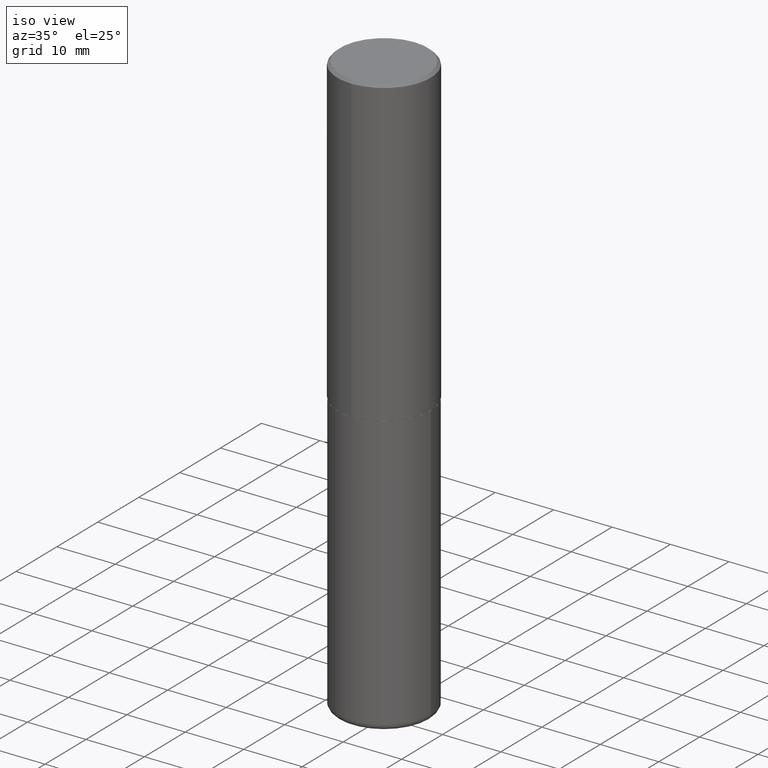
[diagram: clean part render]
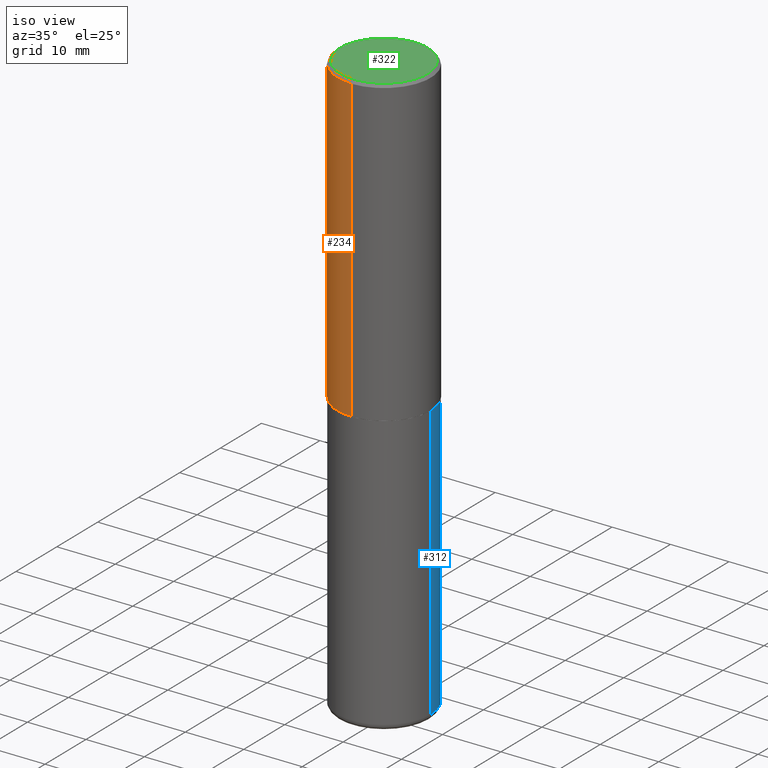
[diagram: same view with three faces highlighted in distinct colors, each labeled with its STEP entity id]
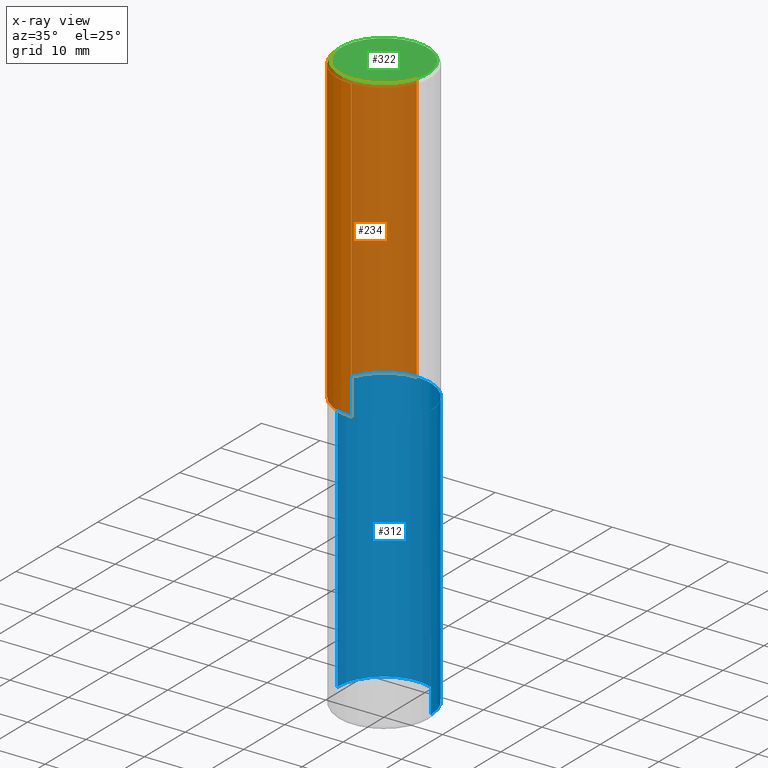
[diagram: x-ray of the same camera — body ghosted, the three highlighted faces saturated]
A machine part, iso view with three faces highlighted in distinct colors.
The next image is the same camera in x-ray (body ghosted, the three faces saturated) — at least one of them is partly hidden behind the body in this view.
Their STEP definitions:

[orange] entity #234 — the highlighted cylindrical surface (partial cylindrical patch) has radius 7.9997 mm, axis along (-0, 0, 1).
#13 = CARTESIAN_POINT ( 'NONE',  ( 2.199284095337290660E-15, 0.3149500000000000632, -0.02000000000000116615 ) ) ;
#14 = CARTESIAN_POINT ( 'NONE',  ( -2.199284095337291449E-15, -0.3149500000000002853, 1.098966783218907654E-15 ) ) ;
#17 = VECTOR ( 'NONE', #130, 39.37007874015748143 ) ;
#24 = CARTESIAN_POINT ( 'NONE',  ( 4.893931958425293692E-31, -6.978674603707955407E-17, -0.02000000000000006981 ) ) ;
#45 = CARTESIAN_POINT ( 'NONE',  ( 0.000000000000000000, 0.000000000000000000, 0.000000000000000000 ) ) ;
#68 = AXIS2_PLACEMENT_3D ( 'NONE', #24, #251, #374 ) ;
#74 = CIRCLE ( 'NONE', #101, 0.3149500000000003408 ) ;
#92 = ORIENTED_EDGE ( 'NONE', *, *, #247, .T. ) ;
#94 = CARTESIAN_POINT ( 'NONE',  ( 2.237854346276437168E-15, 0.3149500000000002853, -1.098966783218907654E-15 ) ) ;
#101 = AXIS2_PLACEMENT_3D ( 'NONE', #154, #241, #125 ) ;
#105 = ORIENTED_EDGE ( 'NONE', *, *, #395, .F. ) ;
#112 = CARTESIAN_POINT ( 'NONE',  ( -2.199284095337241750E-15, -0.3149500000000075017, -2.046199999999998909 ) ) ;
#125 = DIRECTION ( 'NONE',  ( -6.982962677686265922E-15, -1.000000000000000000, 3.469564049740289220E-15 ) ) ;
#126 = LINE ( 'NONE', #94, #17 ) ;
#128 = LINE ( 'NONE', #14, #375 ) ;
#130 = DIRECTION ( 'NONE',  ( -2.446965979212638158E-29, 3.489337301853966019E-15, 1.000000000000000000 ) ) ;
#154 = CARTESIAN_POINT ( 'NONE',  ( 5.006981786664901703E-29, -7.139881987053586380E-15, -2.046200000000000241 ) ) ;
#159 = ORIENTED_EDGE ( 'NONE', *, *, #255, .T. ) ;
#174 = DIRECTION ( 'NONE',  ( -6.982962677686265922E-15, -1.000000000000000000, 3.489337301853966019E-15 ) ) ;
#182 = VERTEX_POINT ( 'NONE', #13 ) ;
#199 = AXIS2_PLACEMENT_3D ( 'NONE', #45, #389, #174 ) ;
#203 = FACE_OUTER_BOUND ( 'NONE', #279, .T. ) ;
#215 = ORIENTED_EDGE ( 'NONE', *, *, #359, .F. ) ;
#232 = CIRCLE ( 'NONE', #68, 0.3149500000000001743 ) ;
#234 = ADVANCED_FACE ( 'NONE', ( #203 ), #333, .T. ) ;
#241 = DIRECTION ( 'NONE',  ( -2.446965979212638438E-29, 3.489337301853966019E-15, 1.000000000000000000 ) ) ;
#247 = EDGE_CURVE ( 'NONE', #406, #377, #128, .T. ) ;
#249 = CARTESIAN_POINT ( 'NONE',  ( -2.160713844398144151E-15, -0.3149500000000002298, -0.01999999999999896999 ) ) ;
#251 = DIRECTION ( 'NONE',  ( -2.446965979212638438E-29, 3.489337301853966019E-15, 1.000000000000000000 ) ) ;
#255 = EDGE_CURVE ( 'NONE', #403, #406, #74, .T. ) ;
#264 = CARTESIAN_POINT ( 'NONE',  ( 2.237854346276462412E-15, 0.3149499999999931799, -2.046200000000001129 ) ) ;
#279 = EDGE_LOOP ( 'NONE', ( #215, #159, #92, #105 ) ) ;
#311 = DIRECTION ( 'NONE',  ( -2.446965979212638158E-29, 3.489337301853966019E-15, 1.000000000000000000 ) ) ;
#333 = CYLINDRICAL_SURFACE ( 'NONE', #199, 0.3149500000000002853 ) ;
#359 = EDGE_CURVE ( 'NONE', #403, #182, #126, .T. ) ;
#374 = DIRECTION ( 'NONE',  ( -6.982962677686264344E-15, -1.000000000000000000, 3.483117034309589160E-15 ) ) ;
#375 = VECTOR ( 'NONE', #311, 39.37007874015748143 ) ;
#377 = VERTEX_POINT ( 'NONE', #249 ) ;
#389 = DIRECTION ( 'NONE',  ( -2.446965979212638438E-29, 3.489337301853966019E-15, 1.000000000000000000 ) ) ;
#395 = EDGE_CURVE ( 'NONE', #182, #377, #232, .T. ) ;
#403 = VERTEX_POINT ( 'NONE', #264 ) ;
#406 = VERTEX_POINT ( 'NONE', #112 ) ;

[blue] entity #312 — the highlighted cylindrical surface (partial cylindrical patch) has radius 7.9997 mm, axis along (-0, 0, 1).
#1 = CARTESIAN_POINT ( 'NONE',  ( 0.3149500000000000077, -1.580768176161233565E-14, -3.897600000000000176 ) ) ;
#7 = AXIS2_PLACEMENT_3D ( 'NONE', #399, #282, #216 ) ;
#25 = AXIS2_PLACEMENT_3D ( 'NONE', #185, #93, #156 ) ;
#27 = FACE_OUTER_BOUND ( 'NONE', #284, .T. ) ;
#46 = EDGE_CURVE ( 'NONE', #242, #63, #61, .T. ) ;
#61 = CIRCLE ( 'NONE', #387, 0.3149500000000000077 ) ;
#63 = VERTEX_POINT ( 'NONE', #208 ) ;
#79 = DIRECTION ( 'NONE',  ( -2.445468806185136877E-29, 3.491481338843145188E-15, 1.000000000000000000 ) ) ;
#93 = DIRECTION ( 'NONE',  ( -2.445468806185136597E-29, 3.491481338843145583E-15, 1.000000000000000000 ) ) ;
#95 = ORIENTED_EDGE ( 'NONE', *, *, #240, .F. ) ;
#113 = LINE ( 'NONE', #235, #239 ) ;
#122 = DIRECTION ( 'NONE',  ( -2.445468806185136877E-29, 3.491481338843145188E-15, 1.000000000000000000 ) ) ;
#153 = CYLINDRICAL_SURFACE ( 'NONE', #7, 0.3149500000000000077 ) ;
#156 = DIRECTION ( 'NONE',  ( 1.000000000000000000, -6.982962677686264344E-15, 0.000000000000000000 ) ) ;
#185 = CARTESIAN_POINT ( 'NONE',  ( 9.531459218987189074E-29, -1.360839766627504420E-14, -3.897600000000000176 ) ) ;
#192 = VECTOR ( 'NONE', #122, 39.37007874015748143 ) ;
#193 = ORIENTED_EDGE ( 'NONE', *, *, #368, .T. ) ;
#208 = CARTESIAN_POINT ( 'NONE',  ( -0.3149500000000000077, -8.140224785300930216E-15, -2.047200000000000575 ) ) ;
#211 = CARTESIAN_POINT ( 'NONE',  ( 0.3149500000000000077, -9.347044692216979650E-15, -2.047200000000000575 ) ) ;
#212 = VERTEX_POINT ( 'NONE', #1 ) ;
#216 = DIRECTION ( 'NONE',  ( 1.000000000000000000, -6.982962677686266711E-15, 4.876176775795936353E-29 ) ) ;
#235 = CARTESIAN_POINT ( 'NONE',  ( 0.3149500000000000077, -2.199284095337289871E-15, 1.535751875536930130E-29 ) ) ;
#239 = VECTOR ( 'NONE', #79, 39.37007874015748143 ) ;
#240 = EDGE_CURVE ( 'NONE', #212, #242, #113, .T. ) ;
#242 = VERTEX_POINT ( 'NONE', #211 ) ;
#248 = ORIENTED_EDGE ( 'NONE', *, *, #46, .F. ) ;
#250 = ORIENTED_EDGE ( 'NONE', *, *, #278, .T. ) ;
#265 = DIRECTION ( 'NONE',  ( 1.000000000000000000, -6.982962677686266711E-15, 0.000000000000000000 ) ) ;
#269 = DIRECTION ( 'NONE',  ( -2.445468806185136597E-29, 3.491481338843145583E-15, 1.000000000000000000 ) ) ;
#278 = EDGE_CURVE ( 'NONE', #212, #372, #414, .T. ) ;
#280 = LINE ( 'NONE', #400, #192 ) ;
#282 = DIRECTION ( 'NONE',  ( -2.445468806185136597E-29, 3.491481338843145583E-15, 1.000000000000000000 ) ) ;
#284 = EDGE_LOOP ( 'NONE', ( #250, #193, #248, #95 ) ) ;
#312 = ADVANCED_FACE ( 'NONE', ( #27 ), #153, .T. ) ;
#315 = CARTESIAN_POINT ( 'NONE',  ( -0.3149500000000000077, -1.137054331999860664E-14, -3.897600000000000176 ) ) ;
#360 = CARTESIAN_POINT ( 'NONE',  ( 5.006363740022212801E-29, -7.147760596879689780E-15, -2.047200000000000575 ) ) ;
#368 = EDGE_CURVE ( 'NONE', #372, #63, #280, .T. ) ;
#372 = VERTEX_POINT ( 'NONE', #315 ) ;
#387 = AXIS2_PLACEMENT_3D ( 'NONE', #360, #269, #265 ) ;
#399 = CARTESIAN_POINT ( 'NONE',  ( 0.000000000000000000, 0.000000000000000000, 0.000000000000000000 ) ) ;
#400 = CARTESIAN_POINT ( 'NONE',  ( -0.3149500000000000077, 2.237854346276435590E-15, -1.549218606675782676E-29 ) ) ;
#414 = CIRCLE ( 'NONE', #25, 0.3149499999999999522 ) ;

[green] entity #322 — the highlighted planar face has unit normal (0, -0, -1).
#3 = CARTESIAN_POINT ( 'NONE',  ( -2.092108864420429609E-15, -0.2949500000000003230, 8.450016163975523199E-16 ) ) ;
#28 = ORIENTED_EDGE ( 'NONE', *, *, #175, .T. ) ;
#31 = AXIS2_PLACEMENT_3D ( 'NONE', #107, #233, #75 ) ;
#51 = EDGE_CURVE ( 'NONE', #376, #163, #345, .T. ) ;
#60 = CARTESIAN_POINT ( 'NONE',  ( 2.059624841783566430E-15, 0.2949500000000003230, -1.121269247573966471E-15 ) ) ;
#75 = DIRECTION ( 'NONE',  ( -6.982962677686265922E-15, -1.000000000000000000, 3.489337301853966019E-15 ) ) ;
#107 = CARTESIAN_POINT ( 'NONE',  ( 4.506783297642337076E-45, -6.426606338391306016E-31, -1.841784207842761497E-16 ) ) ;
#129 = ORIENTED_EDGE ( 'NONE', *, *, #51, .T. ) ;
#147 = CIRCLE ( 'NONE', #418, 0.2949500000000003230 ) ;
#163 = VERTEX_POINT ( 'NONE', #3 ) ;
#175 = EDGE_CURVE ( 'NONE', #163, #376, #147, .T. ) ;
#177 = DIRECTION ( 'NONE',  ( -2.446965979212638438E-29, 3.489337301853966019E-15, 1.000000000000000000 ) ) ;
#188 = CARTESIAN_POINT ( 'NONE',  ( 2.129454468560428545E-15, 0.2949500000000003230, -1.213358457966104521E-15 ) ) ;
#200 = AXIS2_PLACEMENT_3D ( 'NONE', #60, #342, #276 ) ;
#233 = DIRECTION ( 'NONE',  ( -2.446965979212638438E-29, 3.489337301853966019E-15, 1.000000000000000000 ) ) ;
#270 = DIRECTION ( 'NONE',  ( -6.982962677686265922E-15, -1.000000000000000000, 3.489337301853966019E-15 ) ) ;
#276 = DIRECTION ( 'NONE',  ( 6.982962677686265922E-15, 1.000000000000000000, -3.489337301853966019E-15 ) ) ;
#313 = PLANE ( 'NONE',  #200 ) ;
#322 = ADVANCED_FACE ( 'NONE', ( #370 ), #313, .F. ) ;
#342 = DIRECTION ( 'NONE',  ( 2.446965979212638158E-29, -3.489337301853966019E-15, -1.000000000000000000 ) ) ;
#345 = CIRCLE ( 'NONE', #31, 0.2949500000000003230 ) ;
#370 = FACE_OUTER_BOUND ( 'NONE', #410, .T. ) ;
#376 = VERTEX_POINT ( 'NONE', #188 ) ;
#386 = CARTESIAN_POINT ( 'NONE',  ( 4.506783297642337076E-45, -6.426606338391306016E-31, -1.841784207842761497E-16 ) ) ;
#410 = EDGE_LOOP ( 'NONE', ( #129, #28 ) ) ;
#418 = AXIS2_PLACEMENT_3D ( 'NONE', #386, #177, #270 ) ;